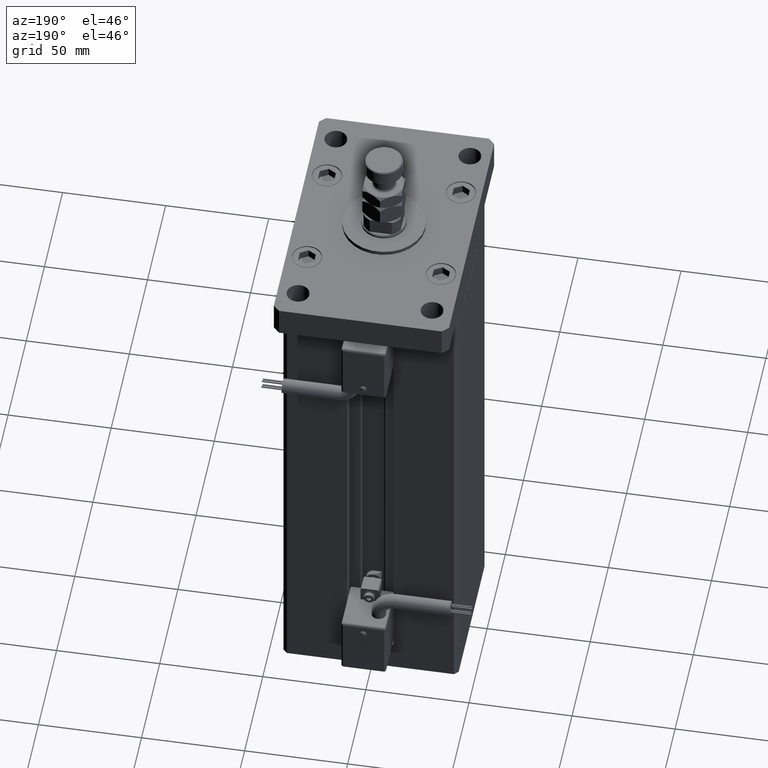
[diagram: clean part render]
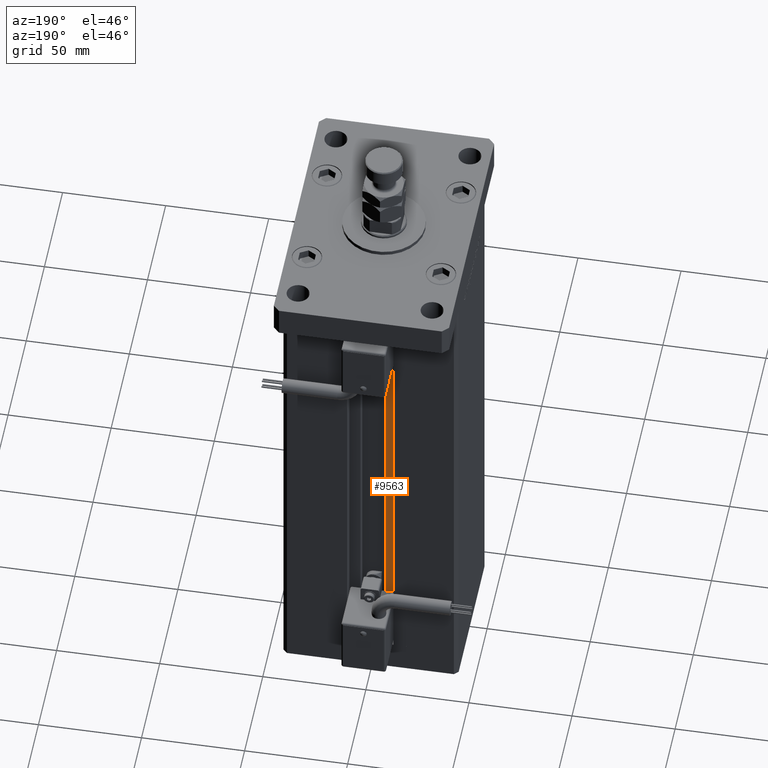
[diagram: same view with one face highlighted and labeled with its STEP entity id]
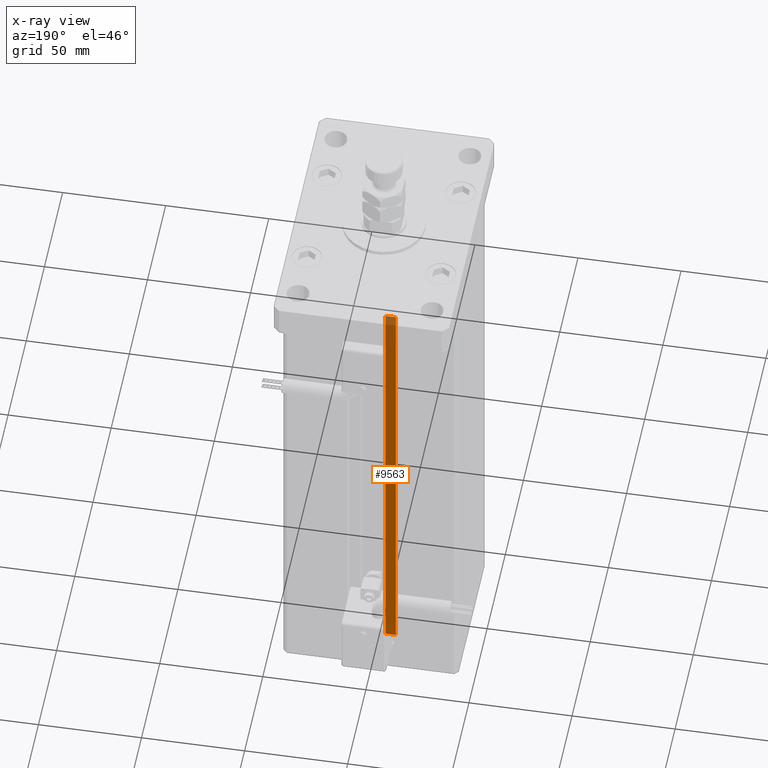
[diagram: x-ray of the same camera — body ghosted, the highlighted face saturated]
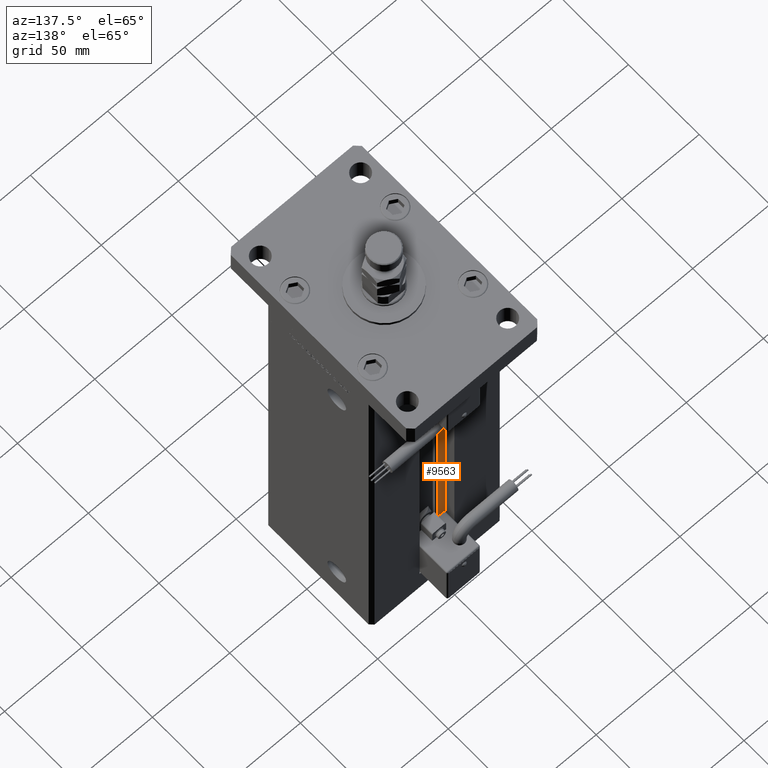
[diagram: same view with one face highlighted and labeled with its STEP entity id]
A machine part, auxiliary view. The second image highlights one B-rep face of the part: STEP entity #9563.
The next image is the same camera in x-ray: the body ghosted, the highlighted face saturated — about 10% of this face is hidden behind the body in this view.
A second angle (auxiliary view) of the same face is appended — the face is thin or edge-on in the first view.
In plain terms, the highlighted planar face has unit normal (0, -1, 0).
Its self-contained STEP definition (entity closure, byte-faithful):
#946 = VECTOR ( 'NONE', #28459, 1000.000000000000000 ) ;
#1487 = FACE_OUTER_BOUND ( 'NONE', #46868, .T. ) ;
#1773 = PLANE ( 'NONE',  #40523 ) ;
#2358 = ORIENTED_EDGE ( 'NONE', *, *, #6035, .F. ) ;
#2386 = ORIENTED_EDGE ( 'NONE', *, *, #19159, .T. ) ;
#4559 = CARTESIAN_POINT ( 'NONE',  ( 0.000000000000000000, 30.99999999999999289, 218.5000000000000000 ) ) ;
#4567 = DIRECTION ( 'NONE',  ( 1.000000000000000000, -0.000000000000000000, -0.000000000000000000 ) ) ;
#6035 = EDGE_CURVE ( 'NONE', #43198, #27260, #53479, .T. ) ;
#8971 = DIRECTION ( 'NONE',  ( -1.000000000000000000, 0.000000000000000000, 0.000000000000000000 ) ) ;
#9563 = ADVANCED_FACE ( 'NONE', ( #1487 ), #1773, .F. ) ;
#10507 = CARTESIAN_POINT ( 'NONE',  ( -6.183333333333999704, 30.99999999999999289, 0.000000000000000000 ) ) ;
#11280 = VECTOR ( 'NONE', #8971, 1000.000000000000000 ) ;
#17838 = CARTESIAN_POINT ( 'NONE',  ( -6.183333333333999704, 30.99999999999999289, 0.000000000000000000 ) ) ;
#18543 = CARTESIAN_POINT ( 'NONE',  ( -6.183333333333999704, 30.99999999999999289, 218.5000000000000000 ) ) ;
#18800 = DIRECTION ( 'NONE',  ( -0.000000000000000000, -0.000000000000000000, 1.000000000000000000 ) ) ;
#18979 = CARTESIAN_POINT ( 'NONE',  ( -11.25000000000000000, 30.99999999999999289, 0.000000000000000000 ) ) ;
#19159 = EDGE_CURVE ( 'NONE', #35807, #27260, #40592, .T. ) ;
#20923 = VERTEX_POINT ( 'NONE', #22646 ) ;
#22646 = CARTESIAN_POINT ( 'NONE',  ( -6.183333333333999704, 30.99999999999999289, 0.000000000000000000 ) ) ;
#24530 = CARTESIAN_POINT ( 'NONE',  ( -11.25000000000000000, 30.99999999999999289, 218.5000000000000000 ) ) ;
#27049 = VECTOR ( 'NONE', #4567, 1000.000000000000000 ) ;
#27260 = VERTEX_POINT ( 'NONE', #24530 ) ;
#28459 = DIRECTION ( 'NONE',  ( -0.000000000000000000, -0.000000000000000000, 1.000000000000000000 ) ) ;
#28572 = ORIENTED_EDGE ( 'NONE', *, *, #48162, .F. ) ;
#29434 = CARTESIAN_POINT ( 'NONE',  ( -6.183333333333999704, 30.99999999999999289, 0.000000000000000000 ) ) ;
#32230 = EDGE_CURVE ( 'NONE', #20923, #43198, #50883, .T. ) ;
#32724 = ORIENTED_EDGE ( 'NONE', *, *, #32230, .F. ) ;
#32996 = DIRECTION ( 'NONE',  ( 0.000000000000000000, -1.000000000000000000, -0.000000000000000000 ) ) ;
#33564 = DIRECTION ( 'NONE',  ( 0.000000000000000000, 0.000000000000000000, -1.000000000000000000 ) ) ;
#35807 = VERTEX_POINT ( 'NONE', #18979 ) ;
#40523 = AXIS2_PLACEMENT_3D ( 'NONE', #29434, #32996, #33564 ) ;
#40592 = LINE ( 'NONE', #50314, #49512 ) ;
#43198 = VERTEX_POINT ( 'NONE', #18543 ) ;
#46868 = EDGE_LOOP ( 'NONE', ( #32724, #28572, #2386, #2358 ) ) ;
#48162 = EDGE_CURVE ( 'NONE', #35807, #20923, #52927, .T. ) ;
#49512 = VECTOR ( 'NONE', #18800, 1000.000000000000000 ) ;
#50314 = CARTESIAN_POINT ( 'NONE',  ( -11.25000000000000000, 30.99999999999999289, 0.000000000000000000 ) ) ;
#50883 = LINE ( 'NONE', #10507, #946 ) ;
#52927 = LINE ( 'NONE', #17838, #27049 ) ;
#53479 = LINE ( 'NONE', #4559, #11280 ) ;